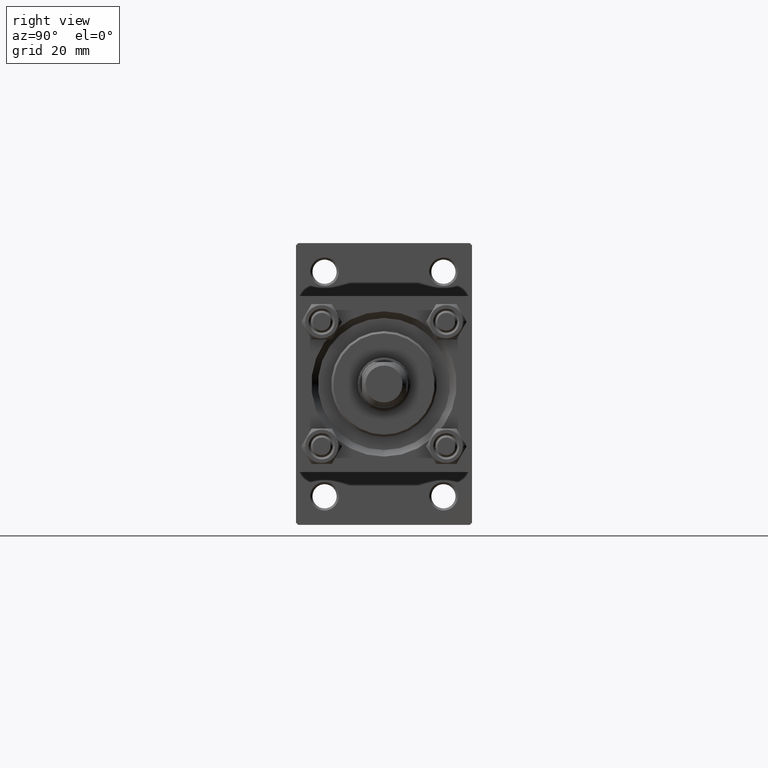
[diagram: clean part render]
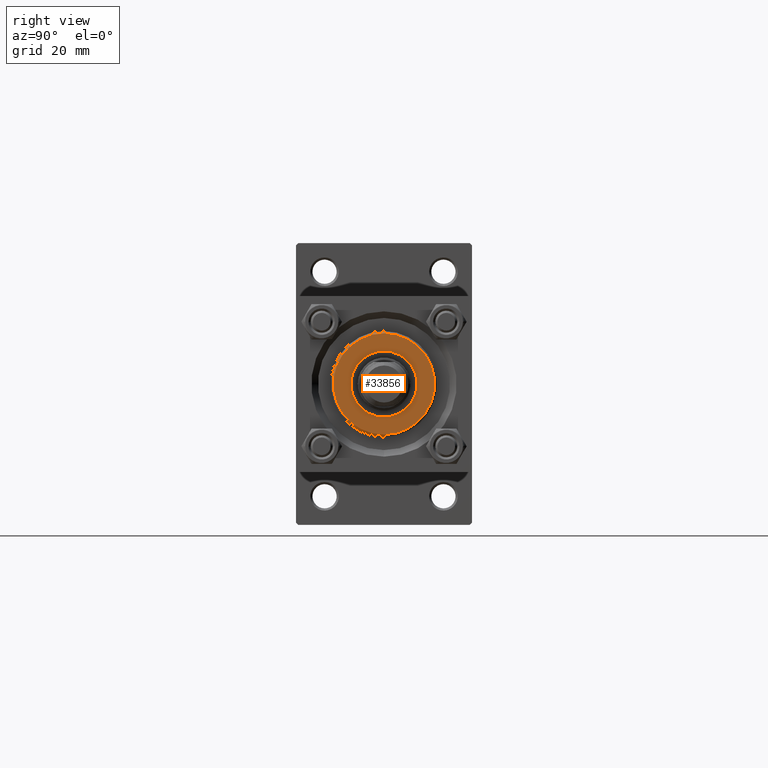
[diagram: same view with one face highlighted and labeled with its STEP entity id]
A machine part, right view. The second image highlights one B-rep face of the part: STEP entity #33856.
In plain terms, the highlighted planar face has unit normal (1, 0, 0).
Its self-contained STEP definition (entity closure, byte-faithful):
#54 = DIRECTION ( 'NONE',  ( 1.000000000000000000, 0.000000000000000000, 0.000000000000000000 ) ) ;
#2674 = DIRECTION ( 'NONE',  ( 0.000000000000000000, 0.000000000000000000, 1.000000000000000000 ) ) ;
#3920 = DIRECTION ( 'NONE',  ( 0.000000000000000000, 0.000000000000000000, 1.000000000000000000 ) ) ;
#4143 = CIRCLE ( 'NONE', #10632, 7.500000000000000888 ) ;
#4360 = VERTEX_POINT ( 'NONE', #7116 ) ;
#5894 = CIRCLE ( 'NONE', #19722, 11.49999999999999645 ) ;
#6480 = PLANE ( 'NONE',  #49068 ) ;
#6964 = EDGE_LOOP ( 'NONE', ( #8392, #41383 ) ) ;
#7116 = CARTESIAN_POINT ( 'NONE',  ( 11.49999999999999645, 1.438959988998139963E-15, 35.70000000000000284 ) ) ;
#7549 = CIRCLE ( 'NONE', #36007, 11.49999999999999645 ) ;
#8392 = ORIENTED_EDGE ( 'NONE', *, *, #9197, .F. ) ;
#9197 = EDGE_CURVE ( 'NONE', #12330, #37324, #4143, .T. ) ;
#10301 = FACE_BOUND ( 'NONE', #6964, .T. ) ;
#10632 = AXIS2_PLACEMENT_3D ( 'NONE', #16438, #24813, #31964 ) ;
#11647 = CIRCLE ( 'NONE', #26272, 7.500000000000000888 ) ;
#12330 = VERTEX_POINT ( 'NONE', #33088 ) ;
#15123 = CARTESIAN_POINT ( 'NONE',  ( 0.000000000000000000, 0.000000000000000000, 35.70000000000000284 ) ) ;
#16438 = CARTESIAN_POINT ( 'NONE',  ( 0.000000000000000000, 0.000000000000000000, 35.70000000000000284 ) ) ;
#17447 = CARTESIAN_POINT ( 'NONE',  ( -11.49999999999999645, 0.000000000000000000, 35.70000000000000284 ) ) ;
#19058 = VERTEX_POINT ( 'NONE', #17447 ) ;
#19722 = AXIS2_PLACEMENT_3D ( 'NONE', #15123, #3920, #42410 ) ;
#21640 = CARTESIAN_POINT ( 'NONE',  ( -7.500000000000000888, 9.184850993605149917E-16, 35.70000000000000284 ) ) ;
#21861 = CARTESIAN_POINT ( 'NONE',  ( 0.000000000000000000, 0.000000000000000000, 35.70000000000000284 ) ) ;
#22021 = CARTESIAN_POINT ( 'NONE',  ( 0.000000000000000000, 0.000000000000000000, 35.70000000000000284 ) ) ;
#23758 = ORIENTED_EDGE ( 'NONE', *, *, #33289, .T. ) ;
#24813 = DIRECTION ( 'NONE',  ( 0.000000000000000000, 0.000000000000000000, 1.000000000000000000 ) ) ;
#25828 = FACE_OUTER_BOUND ( 'NONE', #31362, .T. ) ;
#26272 = AXIS2_PLACEMENT_3D ( 'NONE', #21861, #45564, #37397 ) ;
#31362 = EDGE_LOOP ( 'NONE', ( #23758, #44553 ) ) ;
#31964 = DIRECTION ( 'NONE',  ( 1.000000000000000000, 0.000000000000000000, 0.000000000000000000 ) ) ;
#32978 = EDGE_CURVE ( 'NONE', #4360, #19058, #5894, .T. ) ;
#33088 = CARTESIAN_POINT ( 'NONE',  ( 7.500000000000000888, 0.000000000000000000, 35.70000000000000284 ) ) ;
#33289 = EDGE_CURVE ( 'NONE', #19058, #4360, #7549, .T. ) ;
#33856 = ADVANCED_FACE ( 'NONE', ( #10301, #25828 ), #6480, .T. ) ;
#34165 = DIRECTION ( 'NONE',  ( 0.000000000000000000, 0.000000000000000000, 1.000000000000000000 ) ) ;
#36007 = AXIS2_PLACEMENT_3D ( 'NONE', #39013, #34165, #54 ) ;
#37324 = VERTEX_POINT ( 'NONE', #21640 ) ;
#37397 = DIRECTION ( 'NONE',  ( 1.000000000000000000, 0.000000000000000000, 0.000000000000000000 ) ) ;
#38217 = EDGE_CURVE ( 'NONE', #37324, #12330, #11647, .T. ) ;
#39013 = CARTESIAN_POINT ( 'NONE',  ( 0.000000000000000000, 0.000000000000000000, 35.70000000000000284 ) ) ;
#41383 = ORIENTED_EDGE ( 'NONE', *, *, #38217, .F. ) ;
#42410 = DIRECTION ( 'NONE',  ( 1.000000000000000000, 0.000000000000000000, 0.000000000000000000 ) ) ;
#44553 = ORIENTED_EDGE ( 'NONE', *, *, #32978, .T. ) ;
#45564 = DIRECTION ( 'NONE',  ( 0.000000000000000000, 0.000000000000000000, 1.000000000000000000 ) ) ;
#49068 = AXIS2_PLACEMENT_3D ( 'NONE', #22021, #2674, #49296 ) ;
#49296 = DIRECTION ( 'NONE',  ( 1.000000000000000000, 0.000000000000000000, -0.000000000000000000 ) ) ;